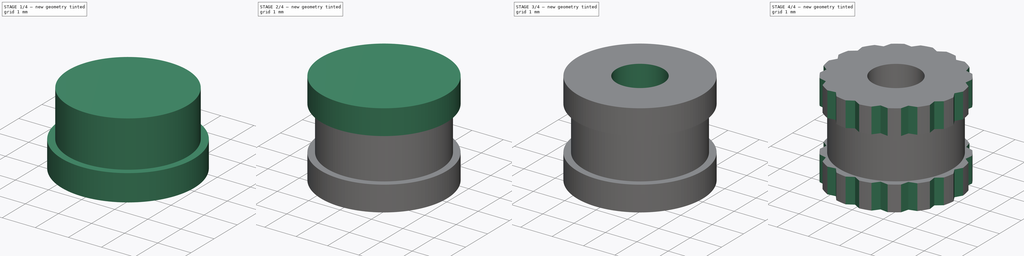
[diagram: build sequence overview — one tinted view per stage of 4, left to right]
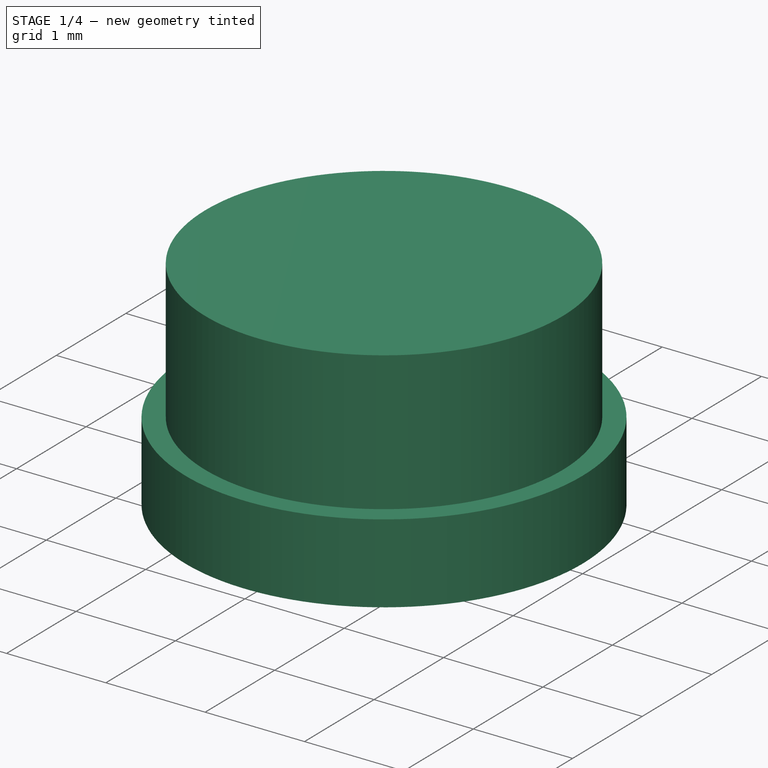
[diagram: stage 1 of 4 — iso view after this stage's code; geometry added in this stage tinted green]
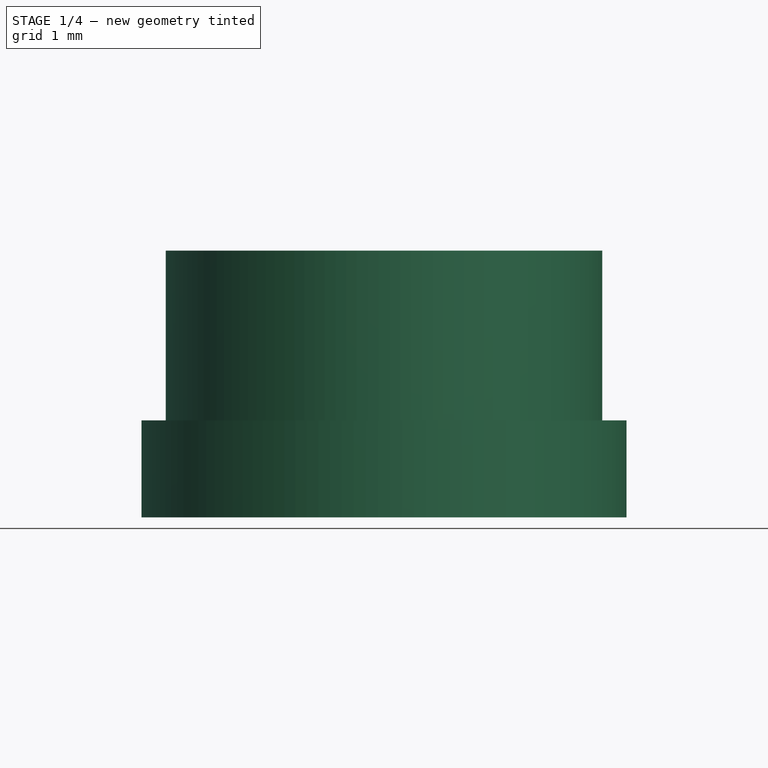
[diagram: stage 1 of 4 — front view after this stage's code; geometry added in this stage tinted green]
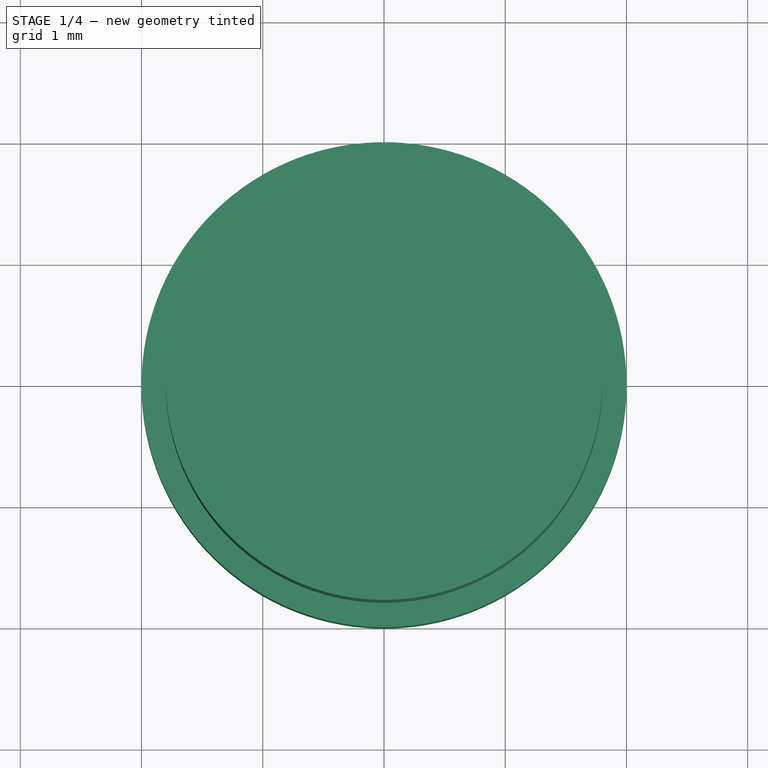
[diagram: stage 1 of 4 — top view after this stage's code; geometry added in this stage tinted green]
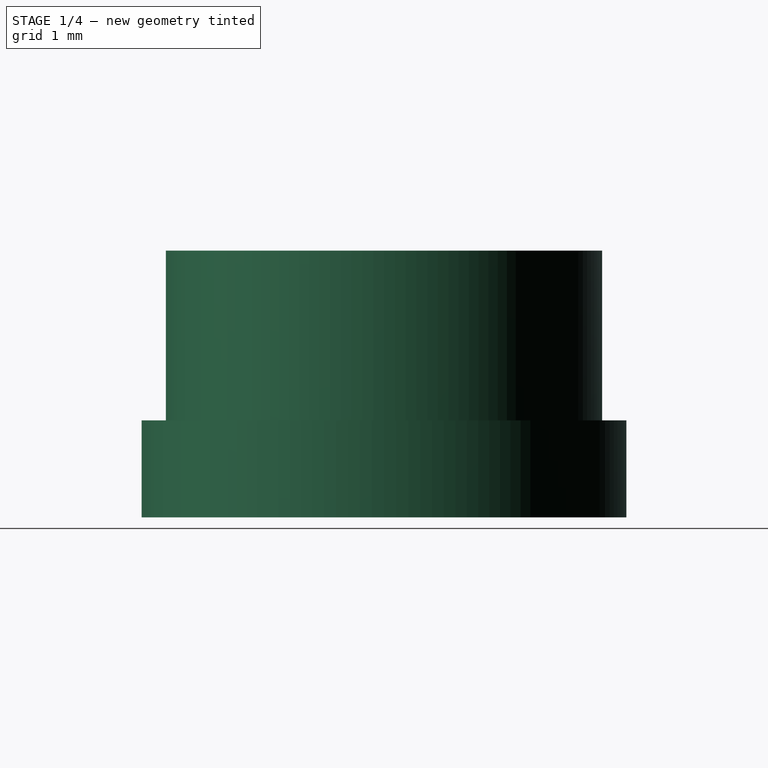
[diagram: stage 1 of 4 — right view after this stage's code; geometry added in this stage tinted green]
FCSTD DOCUMENT  (FreeCAD 0.16R6712 (Git))
Label: M3X3
License: CreativeCommons Attribution-ShareAlike
LicenseURL: http://creativecommons.org/licenses/by-sa/4.0/
objects: Part::Cylinder×4, Part::MultiFuse×2, Part::Cut×1, Sketcher::SketchObject×1, PartDesign::Pocket×1, PartDesign::PolarPattern×1, Part::Feature×1
note: 12 computed .brp shape members not serialized (recipe doc carries the construction recipe); baked Part::Feature solids carry a one-line shape summary decoded from their .brp

FEATURE [Part::Cylinder] Cylinder001
  Angle = 360
  Height = 1.4
  Placement = pos=(0,0,0.8) rot=(0,0,1;0rad)
  Radius = 1.8
FEATURE [Part::Cylinder] Cylinder
  Angle = 360
  Height = 0.8
  Radius = 2
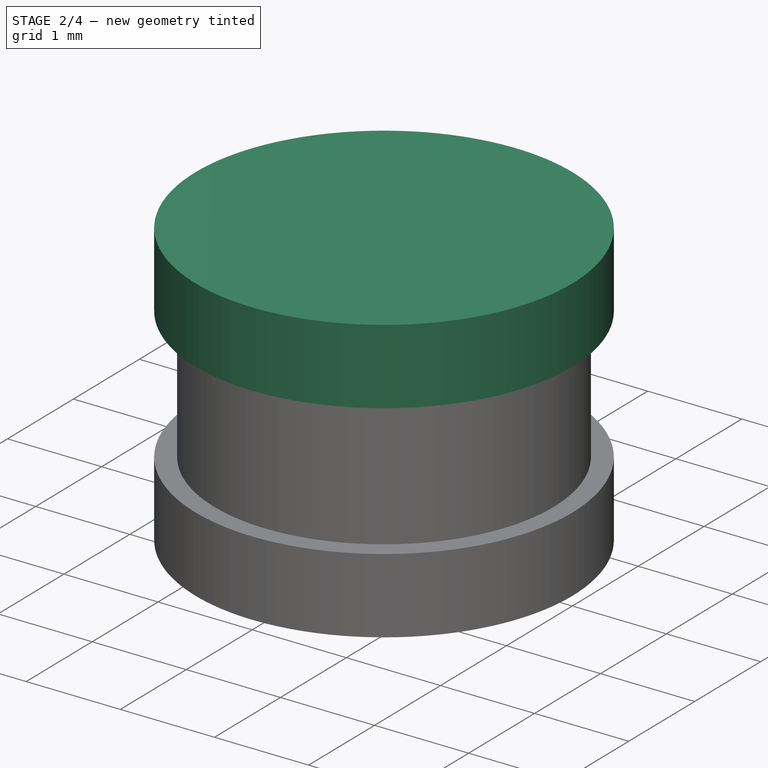
[diagram: stage 2 of 4 — iso view after this stage's code; geometry added in this stage tinted green]
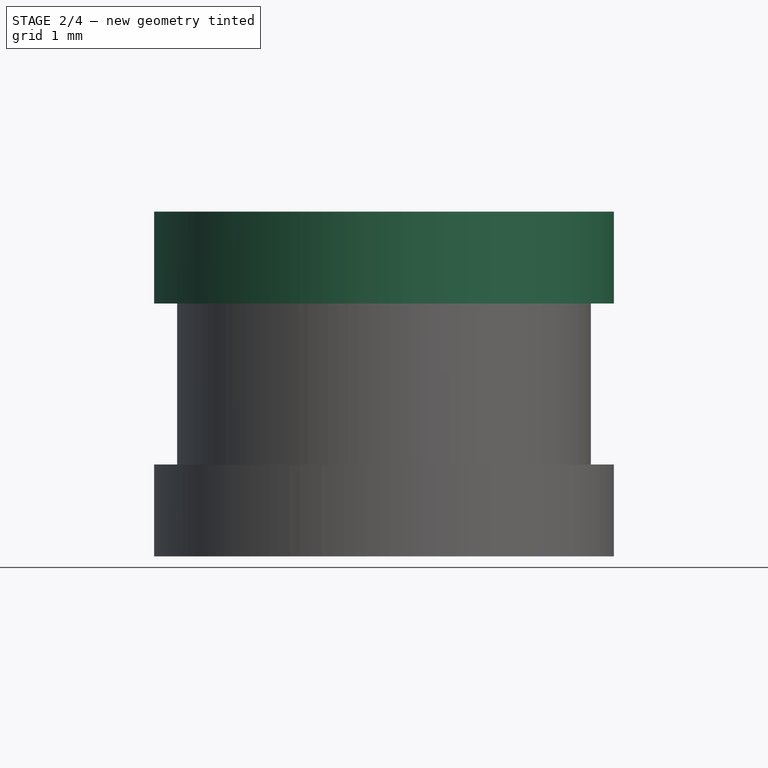
[diagram: stage 2 of 4 — front view after this stage's code; geometry added in this stage tinted green]
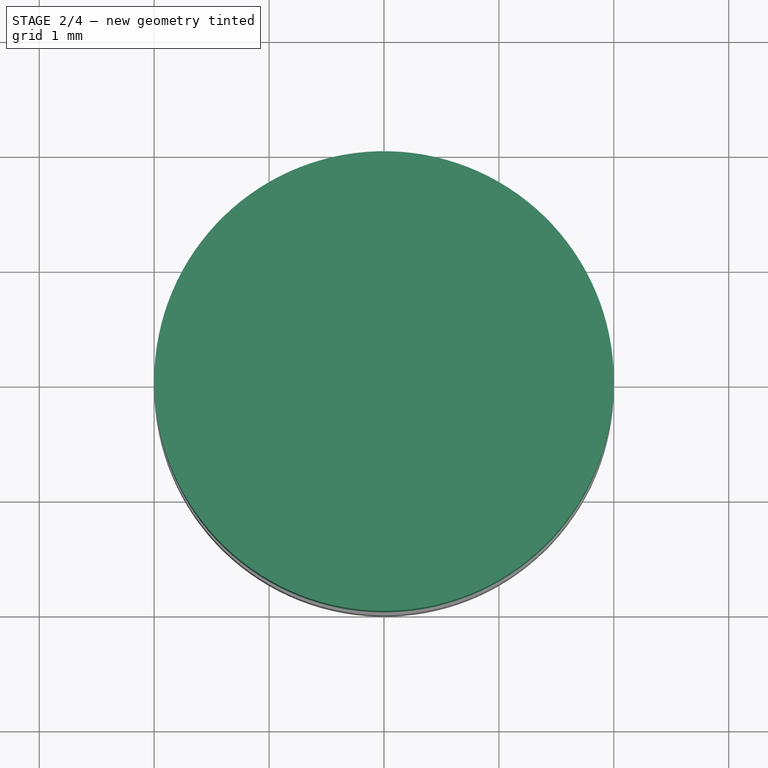
[diagram: stage 2 of 4 — top view after this stage's code; geometry added in this stage tinted green]
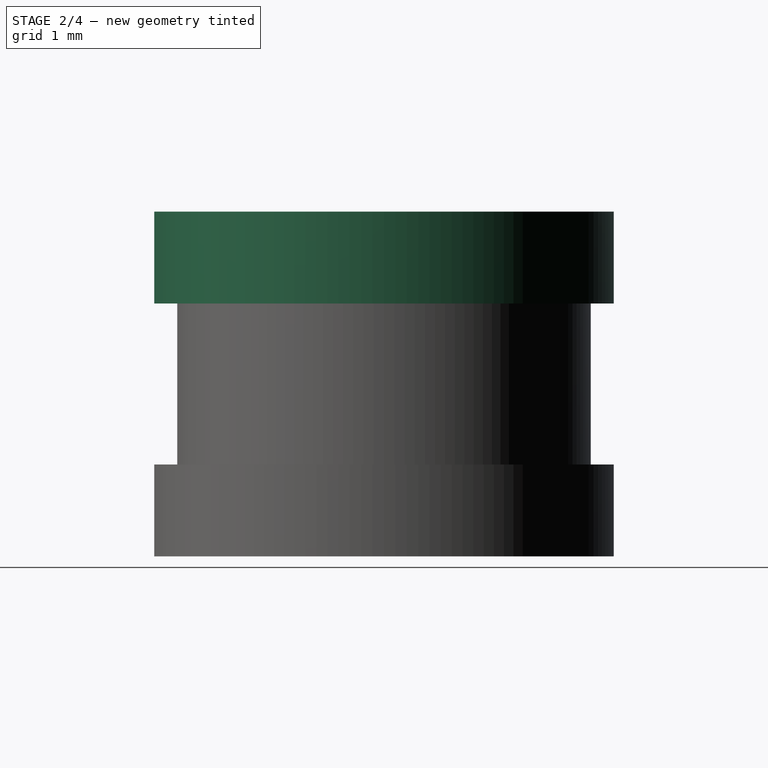
[diagram: stage 2 of 4 — right view after this stage's code; geometry added in this stage tinted green]
FEATURE [Part::Cylinder] Cylinder004
  Angle = 360
  Height = 0.8
  Placement = pos=(0,0,2.2) rot=(0,0,1;0rad)
  Radius = 2
FEATURE [Part::MultiFuse] Fusion
  Shapes = -> [Cylinder,Cylinder001]
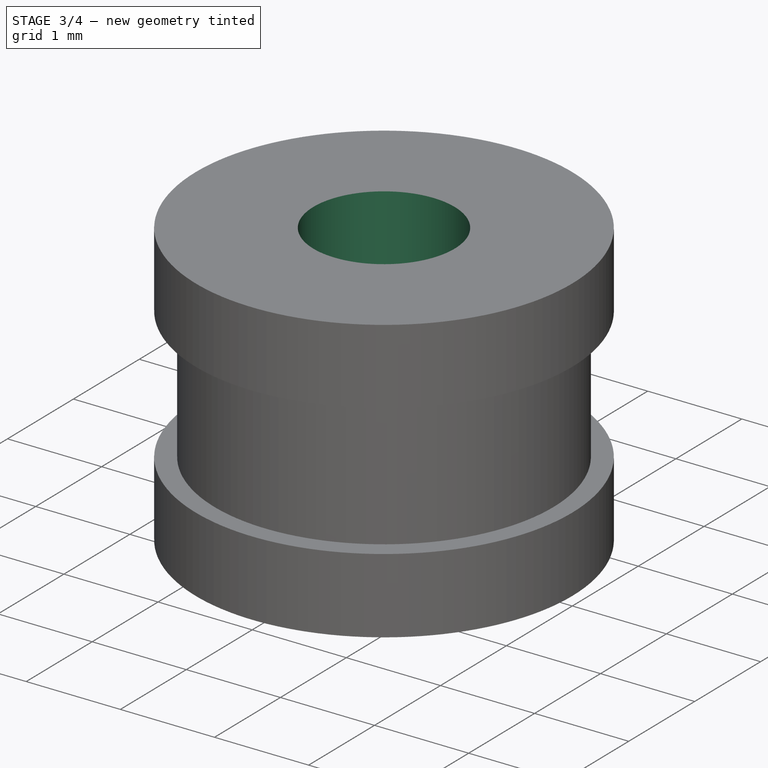
[diagram: stage 3 of 4 — iso view after this stage's code; geometry added in this stage tinted green]
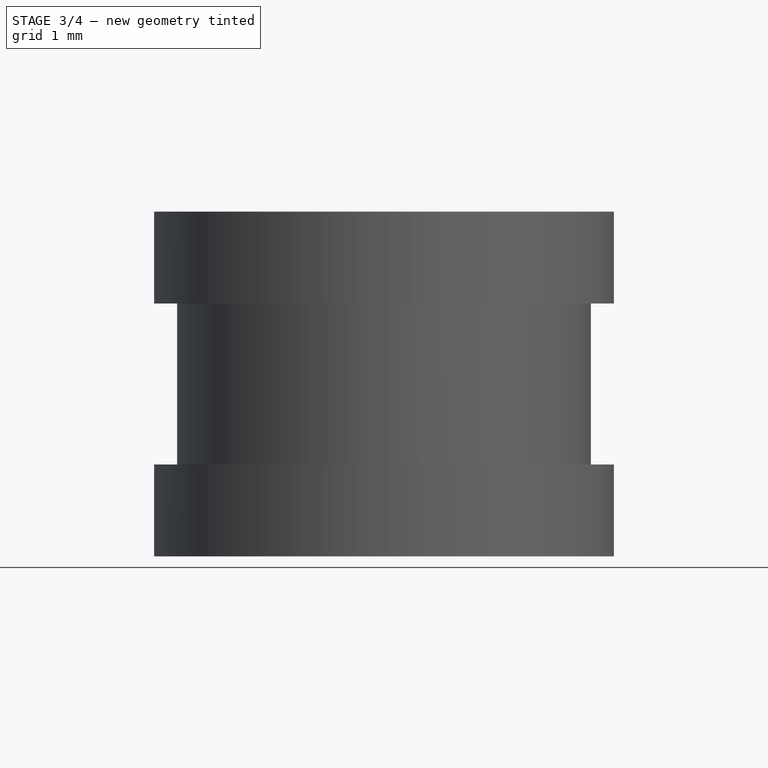
[diagram: stage 3 of 4 — front view after this stage's code; geometry added in this stage tinted green]
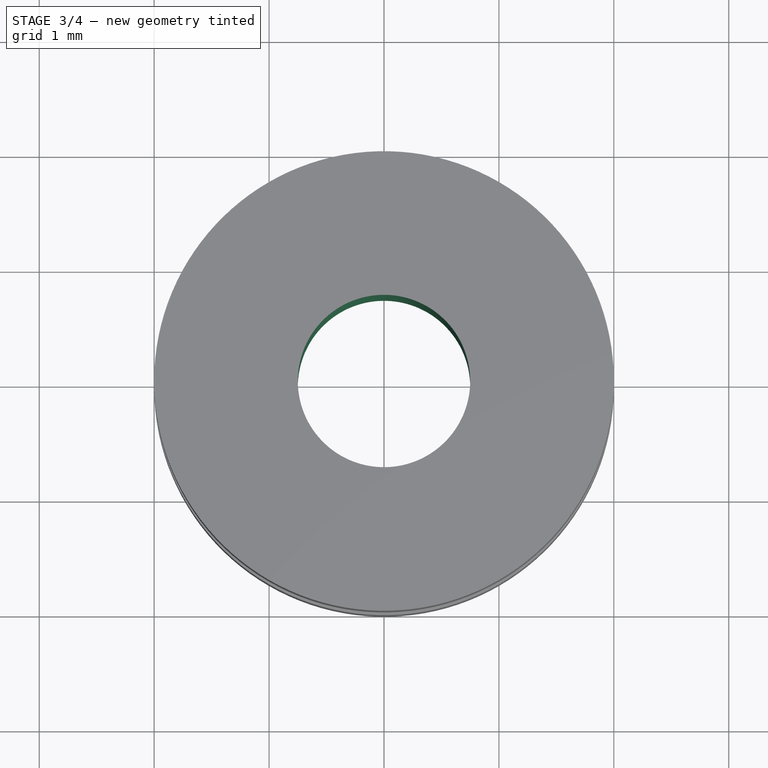
[diagram: stage 3 of 4 — top view after this stage's code; geometry added in this stage tinted green]
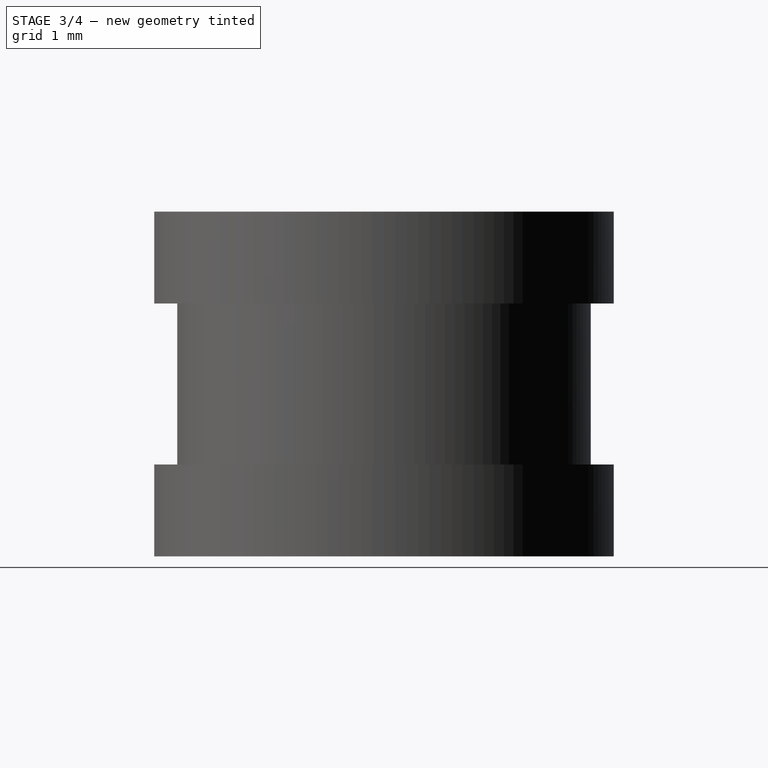
[diagram: stage 3 of 4 — right view after this stage's code; geometry added in this stage tinted green]
FEATURE [Part::Cylinder] Cylinder003
  Angle = 360
  Height = 10
  Placement = pos=(0,0,-3.5) rot=(0,0,1;0rad)
  Radius = 0.75
FEATURE [Part::MultiFuse] Fusion001
  Shapes = -> [Fusion,Cylinder004]
FEATURE [Part::Cut] Cut
  Base = -> Fusion001
  Tool = -> Cylinder003
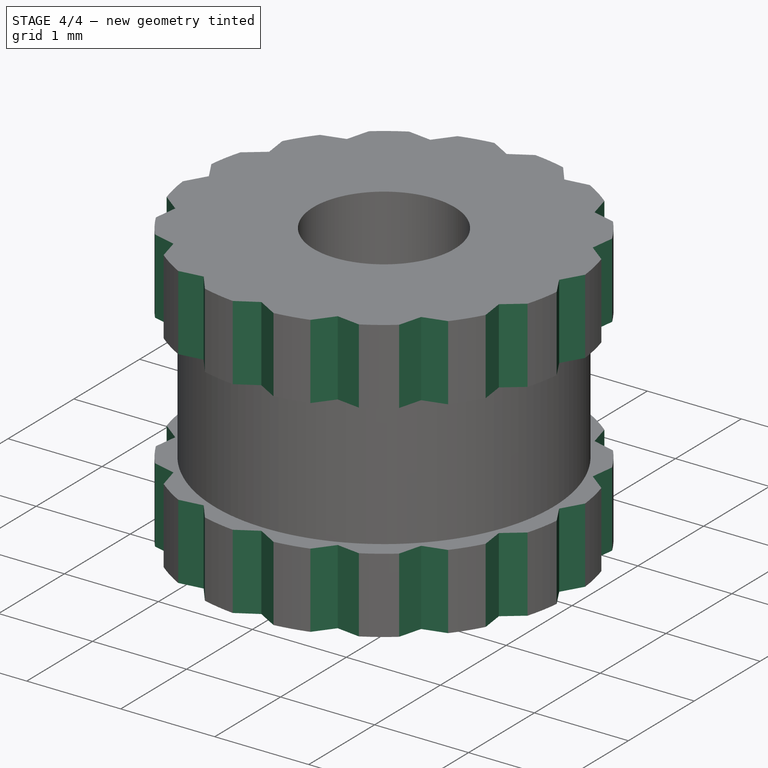
[diagram: stage 4 of 4 — iso view after this stage's code; geometry added in this stage tinted green]
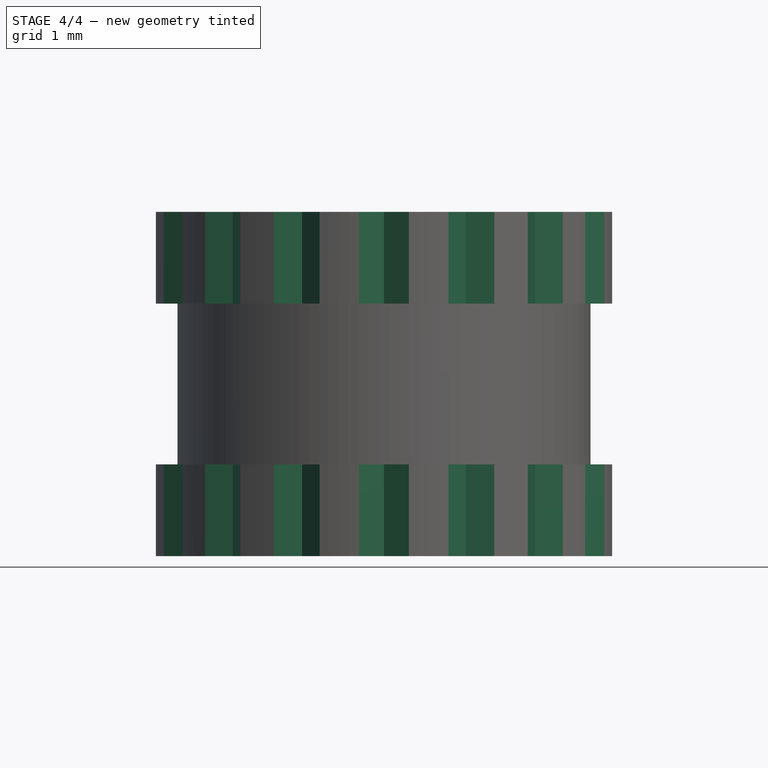
[diagram: stage 4 of 4 — front view after this stage's code; geometry added in this stage tinted green]
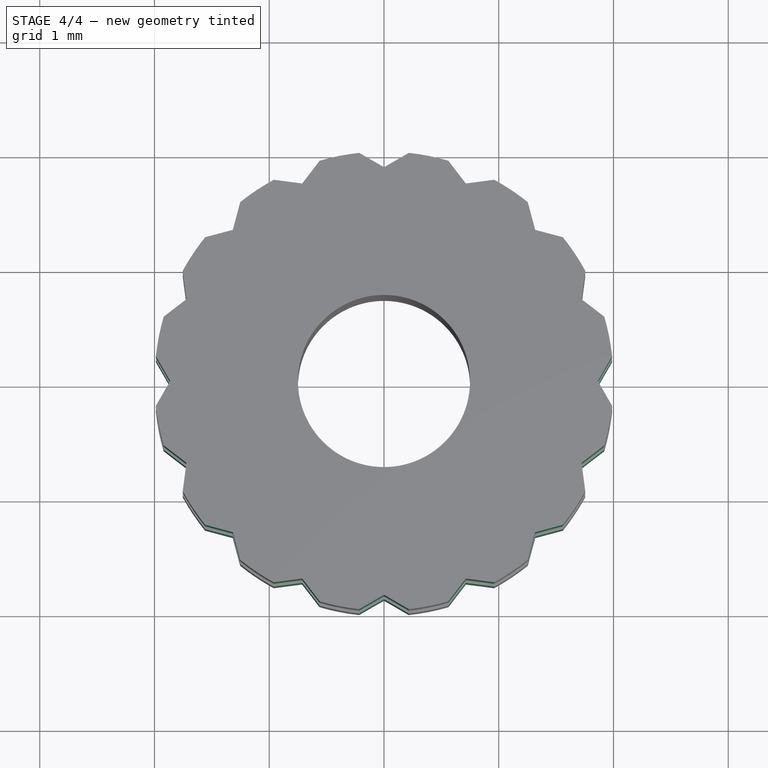
[diagram: stage 4 of 4 — top view after this stage's code; geometry added in this stage tinted green]
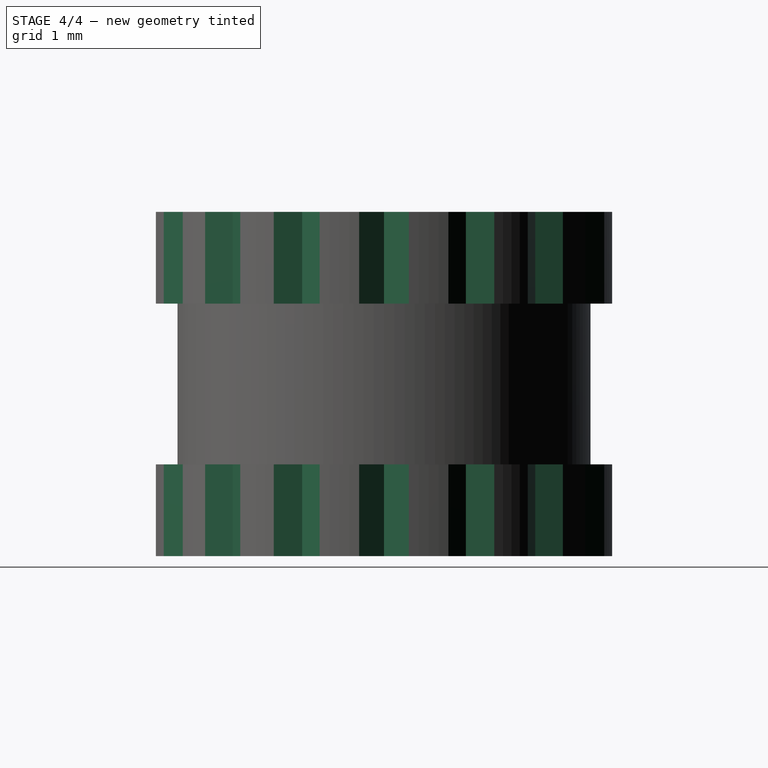
[diagram: stage 4 of 4 — right view after this stage's code; geometry added in this stage tinted green]
FEATURE [Sketcher::SketchObject] Sketch
  ExternalGeometry = -> [Cut]
  Placement = pos=(0,0,3) rot=(0,0,1;0rad)
  Support = -> Cut [Face2]
  sketch-geometry (7):
    g0: LineSegment StartX=-0.216506 StartY=2.23825 StartZ=0 EndX=-0.216506 EndY=1.98825 EndZ=0
    g1: LineSegment StartX=-0.216506 StartY=1.98825 StartZ=0 EndX=0 EndY=1.86325 EndZ=0
    g2: LineSegment StartX=0 StartY=1.86325 StartZ=0 EndX=0.216506 EndY=1.98825 EndZ=0
    g3: LineSegment StartX=0.216506 StartY=1.98825 StartZ=0 EndX=0.216506 EndY=2.23825 EndZ=0
    g4: LineSegment StartX=0.216506 StartY=2.23825 StartZ=0 EndX=0 EndY=2.36325 EndZ=0
    g5: LineSegment StartX=0 StartY=2.36325 StartZ=0 EndX=-0.216506 EndY=2.23825 EndZ=0
    g6: Circle [constr] CenterX=0 CenterY=2.11325 CenterZ=0 NormalX=0 NormalY=0 NormalZ=1 Radius=0.25
  constraints (17):
    c: Coincident(g0,g1)
    c: Coincident(g1,g2)
    c: Coincident(g2,g3)
    c: Coincident(g3,g4)
    c: Coincident(g4,g5)
    c: Coincident(g5,g0)
    c: Equal(g0, g1-g5) x5
    c: PointOnObject(g0,g6)
    c: PointOnObject(g1,g6)
    c: PointOnObject(g2,g6)
    c: PointOnObject(g3,g6)
    c: PointOnObject(g4,g6)
    c: PointOnObject(g5,g6)
    c: PointOnObject(g6,g-2)
    c: PointOnObject(g1,g-2)
    c: PointOnObject(g2,g-3)
    c: Radius(g6) = 0.25
FEATURE [PartDesign::Pocket] Pocket
  Length = 5
  Sketch = -> Sketch
  Type = 0
FEATURE [PartDesign::PolarPattern] PolarPattern
  Angle = 360
  Axis = -> Sketch [N_Axis]
  Occurrences = 16
  Originals = -> [Pocket]
FEATURE [Part::Feature] PolarPattern001  label="Iserto"
  shape: bbox 3.976 x 3.976 x 3 mm, 102 faces (baked)
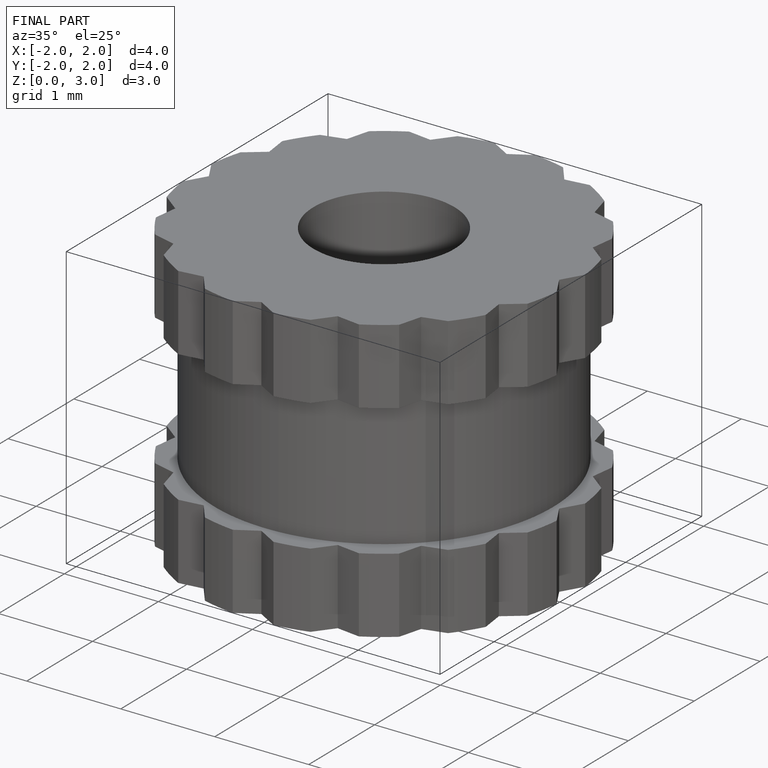
[diagram: finished part — iso view with bounding-box wireframe]
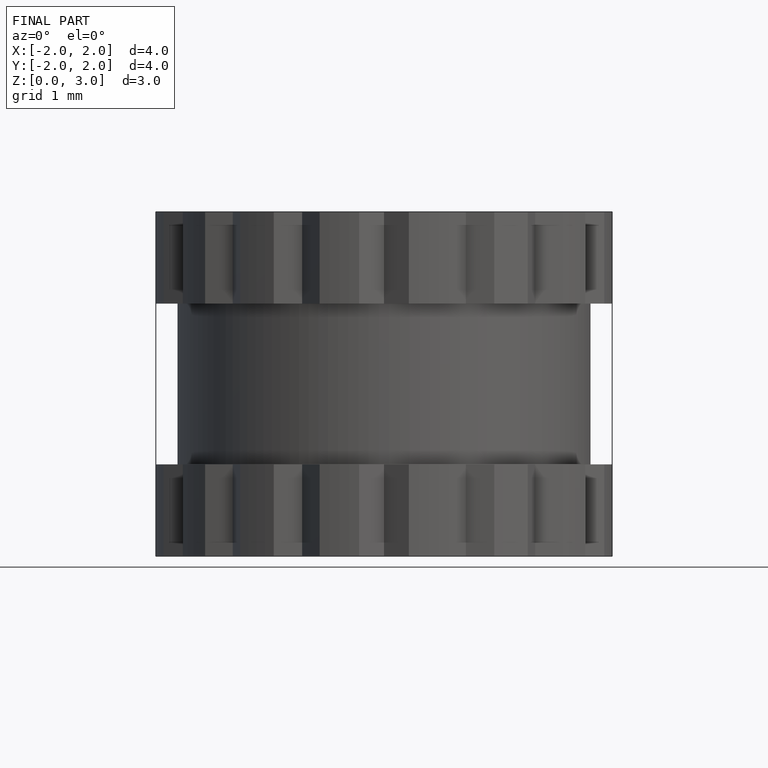
[diagram: finished part — front view with bounding-box wireframe]
